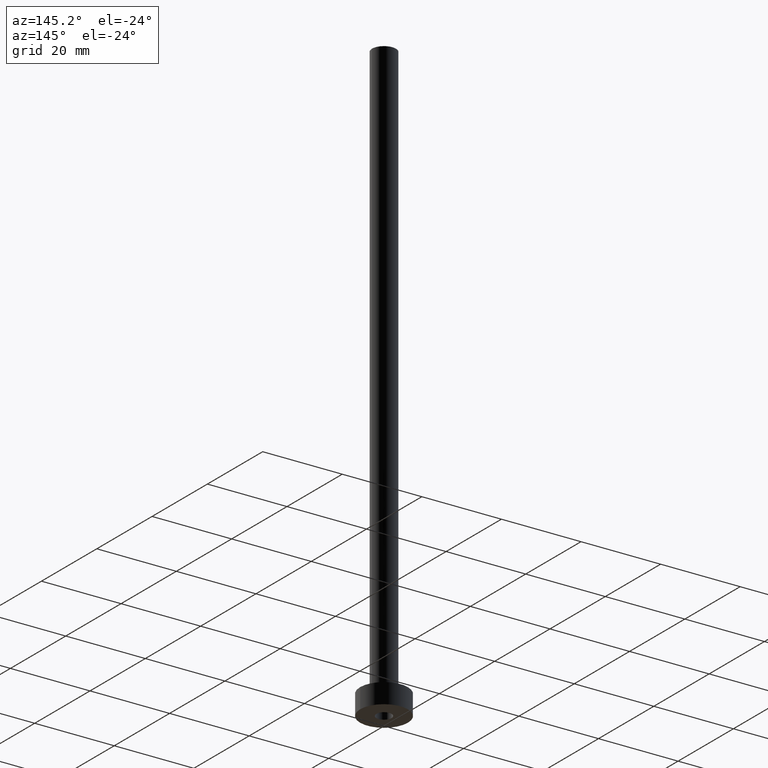
[diagram: clean part render]
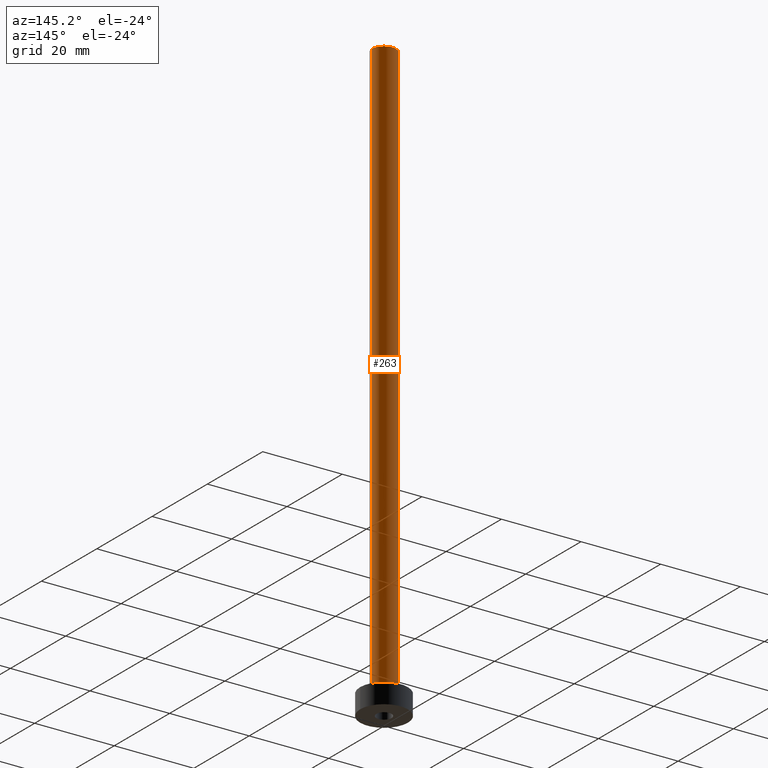
[diagram: same view with one face highlighted and labeled with its STEP entity id]
A machine part, auxiliary view. The second image highlights one B-rep face of the part: STEP entity #263.
In plain terms, the highlighted cylindrical surface (edge-blend (fillet) strip) has radius 3 mm, axis along (-0, -0, -1).
Its self-contained STEP definition (entity closure, byte-faithful):
#16 = CARTESIAN_POINT ( 'NONE',  ( 3.000000000000000444, 3.673940397442060361E-16, 150.0000000000000000 ) ) ;
#29 = CYLINDRICAL_SURFACE ( 'NONE', #427, 3.000000000000000444 ) ;
#30 = ORIENTED_EDGE ( 'NONE', *, *, #285, .T. ) ;
#36 = CARTESIAN_POINT ( 'NONE',  ( -3.000000000000000444, 0.000000000000000000, 5.500000000000005329 ) ) ;
#48 = EDGE_CURVE ( 'NONE', #279, #162, #81, .T. ) ;
#49 = DIRECTION ( 'NONE',  ( -0.000000000000000000, -0.000000000000000000, -1.000000000000000000 ) ) ;
#69 = DIRECTION ( 'NONE',  ( 1.000000000000000000, 0.000000000000000000, 0.000000000000000000 ) ) ;
#81 = LINE ( 'NONE', #422, #231 ) ;
#84 = AXIS2_PLACEMENT_3D ( 'NONE', #460, #129, #385 ) ;
#100 = CARTESIAN_POINT ( 'NONE',  ( 0.000000000000000000, 0.000000000000000000, 150.0000000000000000 ) ) ;
#110 = DIRECTION ( 'NONE',  ( -0.000000000000000000, -0.000000000000000000, -1.000000000000000000 ) ) ;
#118 = ORIENTED_EDGE ( 'NONE', *, *, #169, .T. ) ;
#120 = ORIENTED_EDGE ( 'NONE', *, *, #246, .F. ) ;
#129 = DIRECTION ( 'NONE',  ( 0.000000000000000000, 0.000000000000000000, 1.000000000000000000 ) ) ;
#150 = CARTESIAN_POINT ( 'NONE',  ( 3.000000000000000444, 3.673940397442060361E-16, 150.0000000000000000 ) ) ;
#158 = EDGE_LOOP ( 'NONE', ( #120, #118, #30, #207 ) ) ;
#162 = VERTEX_POINT ( 'NONE', #36 ) ;
#169 = EDGE_CURVE ( 'NONE', #404, #177, #175, .T. ) ;
#175 = LINE ( 'NONE', #16, #368 ) ;
#177 = VERTEX_POINT ( 'NONE', #187 ) ;
#187 = CARTESIAN_POINT ( 'NONE',  ( 3.000000000000000444, 3.673940397442060361E-16, 5.500000000000005329 ) ) ;
#203 = DIRECTION ( 'NONE',  ( -0.000000000000000000, -0.000000000000000000, -1.000000000000000000 ) ) ;
#207 = ORIENTED_EDGE ( 'NONE', *, *, #48, .F. ) ;
#231 = VECTOR ( 'NONE', #110, 1000.000000000000000 ) ;
#244 = CIRCLE ( 'NONE', #84, 3.000000000000000444 ) ;
#246 = EDGE_CURVE ( 'NONE', #404, #279, #461, .T. ) ;
#263 = ADVANCED_FACE ( 'NONE', ( #453 ), #29, .T. ) ;
#279 = VERTEX_POINT ( 'NONE', #387 ) ;
#285 = EDGE_CURVE ( 'NONE', #177, #162, #244, .T. ) ;
#306 = DIRECTION ( 'NONE',  ( 0.000000000000000000, 0.000000000000000000, 1.000000000000000000 ) ) ;
#317 = DIRECTION ( 'NONE',  ( -1.000000000000000000, 0.000000000000000000, 0.000000000000000000 ) ) ;
#368 = VECTOR ( 'NONE', #49, 1000.000000000000000 ) ;
#383 = AXIS2_PLACEMENT_3D ( 'NONE', #100, #306, #69 ) ;
#385 = DIRECTION ( 'NONE',  ( 1.000000000000000000, 0.000000000000000000, 0.000000000000000000 ) ) ;
#387 = CARTESIAN_POINT ( 'NONE',  ( -3.000000000000000444, 0.000000000000000000, 150.0000000000000000 ) ) ;
#404 = VERTEX_POINT ( 'NONE', #150 ) ;
#422 = CARTESIAN_POINT ( 'NONE',  ( -3.000000000000000444, 0.000000000000000000, 150.0000000000000000 ) ) ;
#427 = AXIS2_PLACEMENT_3D ( 'NONE', #458, #203, #317 ) ;
#453 = FACE_OUTER_BOUND ( 'NONE', #158, .T. ) ;
#458 = CARTESIAN_POINT ( 'NONE',  ( 0.000000000000000000, 0.000000000000000000, 150.0000000000000000 ) ) ;
#460 = CARTESIAN_POINT ( 'NONE',  ( 0.000000000000000000, 0.000000000000000000, 5.500000000000005329 ) ) ;
#461 = CIRCLE ( 'NONE', #383, 3.000000000000000444 ) ;